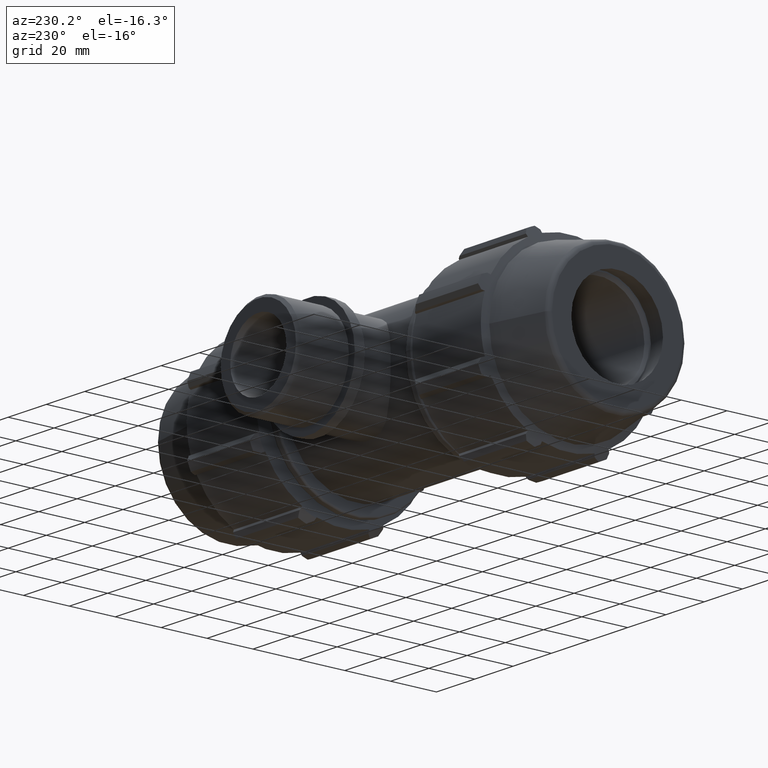
[diagram: clean part render]
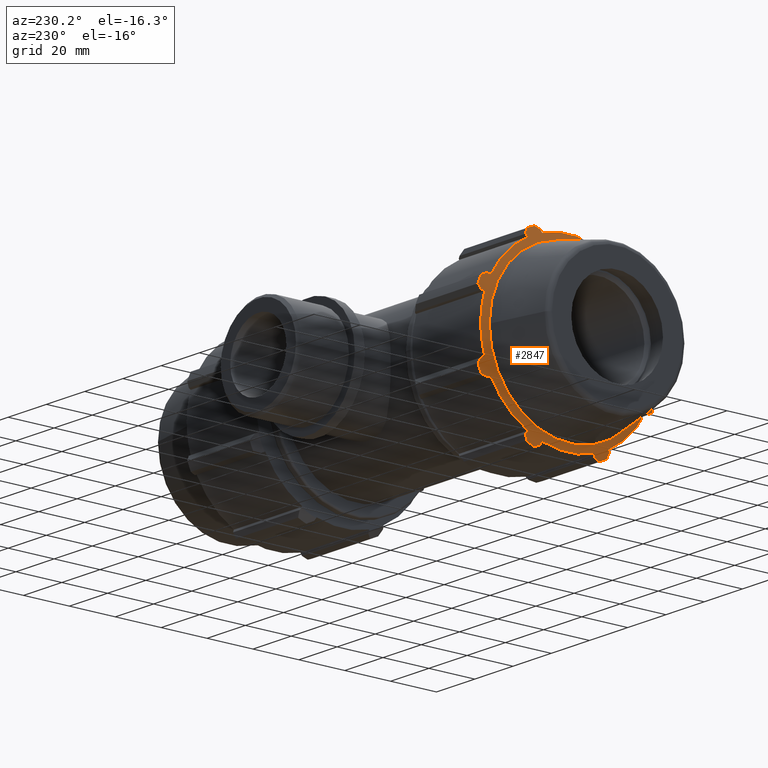
[diagram: same view with one face highlighted and labeled with its STEP entity id]
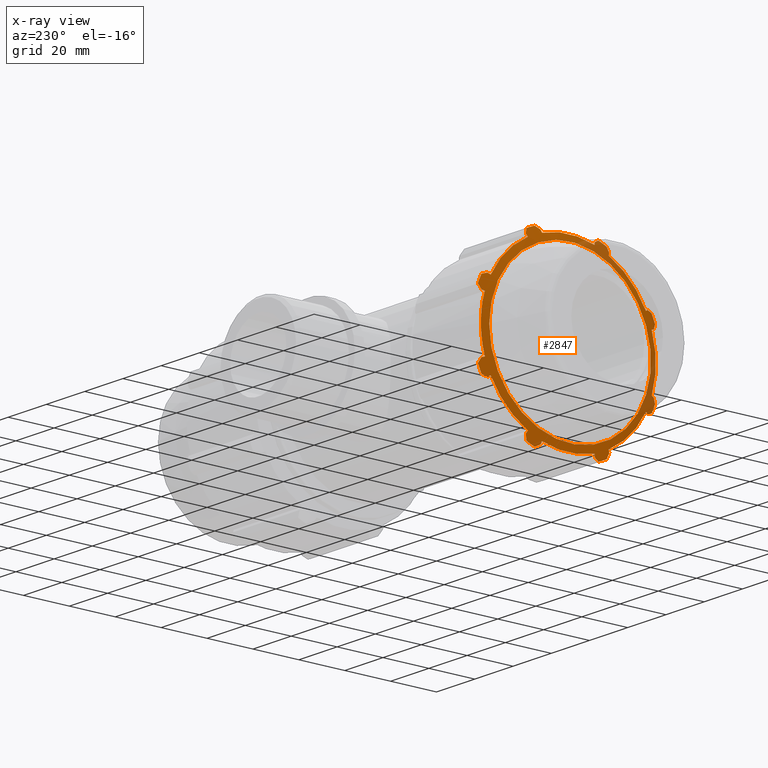
[diagram: x-ray of the same camera — body ghosted, the highlighted face saturated]
A machine part, auxiliary view. The second image highlights one B-rep face of the part: STEP entity #2847.
The next image is the same camera in x-ray: the body ghosted, the highlighted face saturated — about 16% of this face is hidden behind the body in this view.
In plain terms, the highlighted conical surface has half-angle 72 deg.
Its self-contained STEP definition (entity closure, byte-faithful):
#106=(
BOUNDED_CURVE()
B_SPLINE_CURVE(2,(#4237,#4238,#4239),.UNSPECIFIED.,.F.,.F.)
B_SPLINE_CURVE_WITH_KNOTS((3,3),(0.,0.22184272144122),.UNSPECIFIED.)
CURVE()
GEOMETRIC_REPRESENTATION_ITEM()
RATIONAL_B_SPLINE_CURVE((1.,1.00162169945644,1.00242705247196))
REPRESENTATION_ITEM('')
);
#109=(
BOUNDED_CURVE()
B_SPLINE_CURVE(2,(#4263,#4264,#4265),.UNSPECIFIED.,.F.,.F.)
B_SPLINE_CURVE_WITH_KNOTS((3,3),(0.,0.221842721441181),.UNSPECIFIED.)
CURVE()
GEOMETRIC_REPRESENTATION_ITEM()
RATIONAL_B_SPLINE_CURVE((1.,1.0016216994565,1.00242705247205))
REPRESENTATION_ITEM('')
);
#112=(
BOUNDED_CURVE()
B_SPLINE_CURVE(2,(#4289,#4290,#4291),.UNSPECIFIED.,.F.,.F.)
B_SPLINE_CURVE_WITH_KNOTS((3,3),(0.,0.221842721441264),.UNSPECIFIED.)
CURVE()
GEOMETRIC_REPRESENTATION_ITEM()
RATIONAL_B_SPLINE_CURVE((1.,1.00162169945637,1.00242705247186))
REPRESENTATION_ITEM('')
);
#115=(
BOUNDED_CURVE()
B_SPLINE_CURVE(2,(#4315,#4316,#4317),.UNSPECIFIED.,.F.,.F.)
B_SPLINE_CURVE_WITH_KNOTS((3,3),(0.,0.22184272144125),.UNSPECIFIED.)
CURVE()
GEOMETRIC_REPRESENTATION_ITEM()
RATIONAL_B_SPLINE_CURVE((1.,1.00162169945639,1.00242705247189))
REPRESENTATION_ITEM('')
);
#118=(
BOUNDED_CURVE()
B_SPLINE_CURVE(2,(#4341,#4342,#4343),.UNSPECIFIED.,.F.,.F.)
B_SPLINE_CURVE_WITH_KNOTS((3,3),(0.,0.221842721441231),.UNSPECIFIED.)
CURVE()
GEOMETRIC_REPRESENTATION_ITEM()
RATIONAL_B_SPLINE_CURVE((1.,1.00162169945646,1.002427052472))
REPRESENTATION_ITEM('')
);
#121=(
BOUNDED_CURVE()
B_SPLINE_CURVE(2,(#4367,#4368,#4369),.UNSPECIFIED.,.F.,.F.)
B_SPLINE_CURVE_WITH_KNOTS((3,3),(0.,0.221842721441209),.UNSPECIFIED.)
CURVE()
GEOMETRIC_REPRESENTATION_ITEM()
RATIONAL_B_SPLINE_CURVE((1.,1.00162169945662,1.00242705247223))
REPRESENTATION_ITEM('')
);
#124=(
BOUNDED_CURVE()
B_SPLINE_CURVE(2,(#4388,#4389,#4390),.UNSPECIFIED.,.F.,.F.)
B_SPLINE_CURVE_WITH_KNOTS((3,3),(0.,0.221842721441152),.UNSPECIFIED.)
CURVE()
GEOMETRIC_REPRESENTATION_ITEM()
RATIONAL_B_SPLINE_CURVE((1.,1.00162169945648,1.00242705247202))
REPRESENTATION_ITEM('')
);
#125=(
BOUNDED_CURVE()
B_SPLINE_CURVE(2,(#4399,#4400,#4401),.UNSPECIFIED.,.F.,.F.)
B_SPLINE_CURVE_WITH_KNOTS((3,3),(0.659553222107215,0.88139594354837),
 .UNSPECIFIED.)
CURVE()
GEOMETRIC_REPRESENTATION_ITEM()
RATIONAL_B_SPLINE_CURVE((1.00242705247196,1.00162169945644,1.))
REPRESENTATION_ITEM('')
);
#128=(
BOUNDED_CURVE()
B_SPLINE_CURVE(2,(#4425,#4426,#4427),.UNSPECIFIED.,.F.,.F.)
B_SPLINE_CURVE_WITH_KNOTS((3,3),(0.,0.22184272144115),.UNSPECIFIED.)
CURVE()
GEOMETRIC_REPRESENTATION_ITEM()
RATIONAL_B_SPLINE_CURVE((1.,1.00162169945656,1.00242705247214))
REPRESENTATION_ITEM('')
);
#129=(
BOUNDED_CURVE()
B_SPLINE_CURVE(2,(#4443,#4444,#4445),.UNSPECIFIED.,.F.,.F.)
B_SPLINE_CURVE_WITH_KNOTS((3,3),(0.659553222107222,0.881395943548459),
 .UNSPECIFIED.)
CURVE()
GEOMETRIC_REPRESENTATION_ITEM()
RATIONAL_B_SPLINE_CURVE((1.00242705247204,1.00162169945649,1.))
REPRESENTATION_ITEM('')
);
#130=(
BOUNDED_CURVE()
B_SPLINE_CURVE(2,(#4452,#4453,#4454),.UNSPECIFIED.,.F.,.F.)
B_SPLINE_CURVE_WITH_KNOTS((3,3),(0.659553222107211,0.881395943548431),
 .UNSPECIFIED.)
CURVE()
GEOMETRIC_REPRESENTATION_ITEM()
RATIONAL_B_SPLINE_CURVE((1.00242705247207,1.00162169945651,1.))
REPRESENTATION_ITEM('')
);
#131=(
BOUNDED_CURVE()
B_SPLINE_CURVE(2,(#4461,#4462,#4463),.UNSPECIFIED.,.F.,.F.)
B_SPLINE_CURVE_WITH_KNOTS((3,3),(0.659553222107224,0.881395943548425),
 .UNSPECIFIED.)
CURVE()
GEOMETRIC_REPRESENTATION_ITEM()
RATIONAL_B_SPLINE_CURVE((1.00242705247213,1.00162169945655,1.))
REPRESENTATION_ITEM('')
);
#132=(
BOUNDED_CURVE()
B_SPLINE_CURVE(2,(#4470,#4471,#4472),.UNSPECIFIED.,.F.,.F.)
B_SPLINE_CURVE_WITH_KNOTS((3,3),(0.659553222107263,0.881395943548421),
 .UNSPECIFIED.)
CURVE()
GEOMETRIC_REPRESENTATION_ITEM()
RATIONAL_B_SPLINE_CURVE((1.00242705247216,1.00162169945657,1.))
REPRESENTATION_ITEM('')
);
#133=(
BOUNDED_CURVE()
B_SPLINE_CURVE(2,(#4479,#4480,#4481),.UNSPECIFIED.,.F.,.F.)
B_SPLINE_CURVE_WITH_KNOTS((3,3),(0.659553222107144,0.881395943548422),
 .UNSPECIFIED.)
CURVE()
GEOMETRIC_REPRESENTATION_ITEM()
RATIONAL_B_SPLINE_CURVE((1.00242705247189,1.00162169945639,1.))
REPRESENTATION_ITEM('')
);
#134=(
BOUNDED_CURVE()
B_SPLINE_CURVE(2,(#4488,#4489,#4490),.UNSPECIFIED.,.F.,.F.)
B_SPLINE_CURVE_WITH_KNOTS((3,3),(0.659553222107197,0.881395943548414),
 .UNSPECIFIED.)
CURVE()
GEOMETRIC_REPRESENTATION_ITEM()
RATIONAL_B_SPLINE_CURVE((1.00242705247199,1.00162169945646,1.))
REPRESENTATION_ITEM('')
);
#135=(
BOUNDED_CURVE()
B_SPLINE_CURVE(2,(#4497,#4498,#4499),.UNSPECIFIED.,.F.,.F.)
B_SPLINE_CURVE_WITH_KNOTS((3,3),(0.659553222107159,0.881395943548393),
 .UNSPECIFIED.)
CURVE()
GEOMETRIC_REPRESENTATION_ITEM()
RATIONAL_B_SPLINE_CURVE((1.00242705247191,1.0016216994564,1.))
REPRESENTATION_ITEM('')
);
#192=CIRCLE('',#3029,41.);
#198=CIRCLE('',#3043,41.);
#199=CIRCLE('',#3044,38.13);
#200=CIRCLE('',#3045,41.);
#201=CIRCLE('',#3046,38.13);
#202=CIRCLE('',#3047,41.);
#203=CIRCLE('',#3048,38.13);
#204=CIRCLE('',#3049,41.);
#205=CIRCLE('',#3050,38.13);
#206=CIRCLE('',#3051,41.);
#207=CIRCLE('',#3052,38.13);
#208=CIRCLE('',#3053,41.);
#209=CIRCLE('',#3054,38.13);
#210=CIRCLE('',#3055,41.);
#211=CIRCLE('',#3056,38.13);
#212=CIRCLE('',#3057,38.13);
#213=CIRCLE('',#3058,35.2288914170826);
#312=LINE('',#4232,#510);
#318=LINE('',#4258,#516);
#324=LINE('',#4284,#522);
#330=LINE('',#4310,#528);
#336=LINE('',#4336,#534);
#342=LINE('',#4362,#540);
#354=LINE('',#4420,#552);
#357=LINE('',#4447,#555);
#358=LINE('',#4456,#556);
#359=LINE('',#4465,#557);
#360=LINE('',#4474,#558);
#361=LINE('',#4483,#559);
#362=LINE('',#4492,#560);
#363=LINE('',#4501,#561);
#364=LINE('',#4504,#562);
#365=LINE('',#4506,#563);
#510=VECTOR('',#3334,1.29329853581307);
#516=VECTOR('',#3348,1.29329853581307);
#522=VECTOR('',#3362,1.29329853581307);
#528=VECTOR('',#3376,1.29329853581307);
#534=VECTOR('',#3390,1.29329853581307);
#540=VECTOR('',#3404,1.29329853581305);
#552=VECTOR('',#3436,1.29329853581305);
#555=VECTOR('',#3459,1.29329853581305);
#556=VECTOR('',#3464,1.29329853581306);
#557=VECTOR('',#3469,1.29329853581307);
#558=VECTOR('',#3474,1.29329853581307);
#559=VECTOR('',#3479,1.29329853581307);
#560=VECTOR('',#3484,1.29329853581306);
#561=VECTOR('',#3489,1.29329853581305);
#562=VECTOR('',#3492,1.29329853581306);
#563=VECTOR('',#3493,1.29329853581305);
#698=CONICAL_SURFACE('',#3042,38.1144457085413,72.);
#719=FACE_BOUND('',#958,.T.);
#790=FACE_OUTER_BOUND('',#957,.T.);
#957=EDGE_LOOP('',(#1977,#1978,#1979,#1980,#1981,#1982,#1983,#1984,#1985,
#1986,#1987,#1988,#1989,#1990,#1991,#1992,#1993,#1994,#1995,#1996,#1997,
#1998,#1999,#2000,#2001,#2002,#2003,#2004,#2005,#2006,#2007,#2008,#2009,
#2010,#2011,#2012,#2013,#2014,#2015,#2016,#2017,#2018,#2019,#2020,#2021,
#2022,#2023,#2024));
#958=EDGE_LOOP('',(#2025));
#1178=VERTEX_POINT('',#4229);
#1179=VERTEX_POINT('',#4231);
#1180=VERTEX_POINT('',#4235);
#1185=VERTEX_POINT('',#4255);
#1186=VERTEX_POINT('',#4257);
#1187=VERTEX_POINT('',#4261);
#1192=VERTEX_POINT('',#4281);
#1193=VERTEX_POINT('',#4283);
#1194=VERTEX_POINT('',#4287);
#1199=VERTEX_POINT('',#4307);
#1200=VERTEX_POINT('',#4309);
#1201=VERTEX_POINT('',#4313);
#1206=VERTEX_POINT('',#4333);
#1207=VERTEX_POINT('',#4335);
#1208=VERTEX_POINT('',#4339);
#1213=VERTEX_POINT('',#4359);
#1214=VERTEX_POINT('',#4361);
#1215=VERTEX_POINT('',#4365);
#1220=VERTEX_POINT('',#4385);
#1221=VERTEX_POINT('',#4387);
#1222=VERTEX_POINT('',#4393);
#1223=VERTEX_POINT('',#4397);
#1228=VERTEX_POINT('',#4417);
#1229=VERTEX_POINT('',#4419);
#1230=VERTEX_POINT('',#4423);
#1235=VERTEX_POINT('',#4440);
#1236=VERTEX_POINT('',#4442);
#1237=VERTEX_POINT('',#4446);
#1238=VERTEX_POINT('',#4449);
#1239=VERTEX_POINT('',#4451);
#1240=VERTEX_POINT('',#4455);
#1241=VERTEX_POINT('',#4458);
#1242=VERTEX_POINT('',#4460);
#1243=VERTEX_POINT('',#4464);
#1244=VERTEX_POINT('',#4467);
#1245=VERTEX_POINT('',#4469);
#1246=VERTEX_POINT('',#4473);
#1247=VERTEX_POINT('',#4476);
#1248=VERTEX_POINT('',#4478);
#1249=VERTEX_POINT('',#4482);
#1250=VERTEX_POINT('',#4485);
#1251=VERTEX_POINT('',#4487);
#1252=VERTEX_POINT('',#4491);
#1253=VERTEX_POINT('',#4494);
#1254=VERTEX_POINT('',#4496);
#1255=VERTEX_POINT('',#4500);
#1256=VERTEX_POINT('',#4502);
#1257=VERTEX_POINT('',#4505);
#1258=VERTEX_POINT('',#4508);
#1458=EDGE_CURVE('',#1179,#1178,#312,.T.);
#1461=EDGE_CURVE('',#1180,#1178,#106,.T.);
#1468=EDGE_CURVE('',#1186,#1185,#318,.T.);
#1471=EDGE_CURVE('',#1187,#1185,#109,.T.);
#1478=EDGE_CURVE('',#1193,#1192,#324,.T.);
#1481=EDGE_CURVE('',#1194,#1192,#112,.T.);
#1488=EDGE_CURVE('',#1200,#1199,#330,.T.);
#1491=EDGE_CURVE('',#1201,#1199,#115,.T.);
#1498=EDGE_CURVE('',#1207,#1206,#336,.T.);
#1501=EDGE_CURVE('',#1208,#1206,#118,.T.);
#1508=EDGE_CURVE('',#1214,#1213,#342,.T.);
#1511=EDGE_CURVE('',#1215,#1213,#121,.T.);
#1518=EDGE_CURVE('',#1220,#1221,#124,.T.);
#1521=EDGE_CURVE('',#1222,#1220,#192,.T.);
#1523=EDGE_CURVE('',#1223,#1222,#125,.T.);
#1530=EDGE_CURVE('',#1229,#1228,#354,.T.);
#1533=EDGE_CURVE('',#1230,#1228,#128,.T.);
#1538=EDGE_CURVE('',#1235,#1215,#198,.T.);
#1539=EDGE_CURVE('',#1236,#1235,#129,.T.);
#1540=EDGE_CURVE('',#1236,#1237,#357,.T.);
#1541=EDGE_CURVE('',#1237,#1207,#199,.T.);
#1542=EDGE_CURVE('',#1238,#1208,#200,.T.);
#1543=EDGE_CURVE('',#1239,#1238,#130,.T.);
#1544=EDGE_CURVE('',#1239,#1240,#358,.T.);
#1545=EDGE_CURVE('',#1240,#1200,#201,.T.);
#1546=EDGE_CURVE('',#1241,#1201,#202,.T.);
#1547=EDGE_CURVE('',#1242,#1241,#131,.T.);
#1548=EDGE_CURVE('',#1242,#1243,#359,.T.);
#1549=EDGE_CURVE('',#1243,#1193,#203,.T.);
#1550=EDGE_CURVE('',#1244,#1194,#204,.T.);
#1551=EDGE_CURVE('',#1245,#1244,#132,.T.);
#1552=EDGE_CURVE('',#1245,#1246,#360,.T.);
#1553=EDGE_CURVE('',#1246,#1186,#205,.T.);
#1554=EDGE_CURVE('',#1247,#1187,#206,.T.);
#1555=EDGE_CURVE('',#1248,#1247,#133,.T.);
#1556=EDGE_CURVE('',#1248,#1249,#361,.T.);
#1557=EDGE_CURVE('',#1249,#1179,#207,.T.);
#1558=EDGE_CURVE('',#1250,#1180,#208,.T.);
#1559=EDGE_CURVE('',#1251,#1250,#134,.T.);
#1560=EDGE_CURVE('',#1251,#1252,#362,.T.);
#1561=EDGE_CURVE('',#1252,#1229,#209,.T.);
#1562=EDGE_CURVE('',#1253,#1230,#210,.T.);
#1563=EDGE_CURVE('',#1254,#1253,#135,.T.);
#1564=EDGE_CURVE('',#1254,#1255,#363,.T.);
#1565=EDGE_CURVE('',#1255,#1256,#211,.T.);
#1566=EDGE_CURVE('',#1256,#1221,#364,.T.);
#1567=EDGE_CURVE('',#1223,#1257,#365,.T.);
#1568=EDGE_CURVE('',#1257,#1214,#212,.T.);
#1569=EDGE_CURVE('',#1258,#1258,#213,.T.);
#1977=ORIENTED_EDGE('',*,*,#1511,.F.);
#1978=ORIENTED_EDGE('',*,*,#1538,.F.);
#1979=ORIENTED_EDGE('',*,*,#1539,.F.);
#1980=ORIENTED_EDGE('',*,*,#1540,.T.);
#1981=ORIENTED_EDGE('',*,*,#1541,.T.);
#1982=ORIENTED_EDGE('',*,*,#1498,.T.);
#1983=ORIENTED_EDGE('',*,*,#1501,.F.);
#1984=ORIENTED_EDGE('',*,*,#1542,.F.);
#1985=ORIENTED_EDGE('',*,*,#1543,.F.);
#1986=ORIENTED_EDGE('',*,*,#1544,.T.);
#1987=ORIENTED_EDGE('',*,*,#1545,.T.);
#1988=ORIENTED_EDGE('',*,*,#1488,.T.);
#1989=ORIENTED_EDGE('',*,*,#1491,.F.);
#1990=ORIENTED_EDGE('',*,*,#1546,.F.);
#1991=ORIENTED_EDGE('',*,*,#1547,.F.);
#1992=ORIENTED_EDGE('',*,*,#1548,.T.);
#1993=ORIENTED_EDGE('',*,*,#1549,.T.);
#1994=ORIENTED_EDGE('',*,*,#1478,.T.);
#1995=ORIENTED_EDGE('',*,*,#1481,.F.);
#1996=ORIENTED_EDGE('',*,*,#1550,.F.);
#1997=ORIENTED_EDGE('',*,*,#1551,.F.);
#1998=ORIENTED_EDGE('',*,*,#1552,.T.);
#1999=ORIENTED_EDGE('',*,*,#1553,.T.);
#2000=ORIENTED_EDGE('',*,*,#1468,.T.);
#2001=ORIENTED_EDGE('',*,*,#1471,.F.);
#2002=ORIENTED_EDGE('',*,*,#1554,.F.);
#2003=ORIENTED_EDGE('',*,*,#1555,.F.);
#2004=ORIENTED_EDGE('',*,*,#1556,.T.);
#2005=ORIENTED_EDGE('',*,*,#1557,.T.);
#2006=ORIENTED_EDGE('',*,*,#1458,.T.);
#2007=ORIENTED_EDGE('',*,*,#1461,.F.);
#2008=ORIENTED_EDGE('',*,*,#1558,.F.);
#2009=ORIENTED_EDGE('',*,*,#1559,.F.);
#2010=ORIENTED_EDGE('',*,*,#1560,.T.);
#2011=ORIENTED_EDGE('',*,*,#1561,.T.);
#2012=ORIENTED_EDGE('',*,*,#1530,.T.);
#2013=ORIENTED_EDGE('',*,*,#1533,.F.);
#2014=ORIENTED_EDGE('',*,*,#1562,.F.);
#2015=ORIENTED_EDGE('',*,*,#1563,.F.);
#2016=ORIENTED_EDGE('',*,*,#1564,.T.);
#2017=ORIENTED_EDGE('',*,*,#1565,.T.);
#2018=ORIENTED_EDGE('',*,*,#1566,.T.);
#2019=ORIENTED_EDGE('',*,*,#1518,.F.);
#2020=ORIENTED_EDGE('',*,*,#1521,.F.);
#2021=ORIENTED_EDGE('',*,*,#1523,.F.);
#2022=ORIENTED_EDGE('',*,*,#1567,.T.);
#2023=ORIENTED_EDGE('',*,*,#1568,.T.);
#2024=ORIENTED_EDGE('',*,*,#1508,.T.);
#2025=ORIENTED_EDGE('',*,*,#1569,.T.);
#2847=ADVANCED_FACE('',(#790,#719),#698,.T.);
#3029=AXIS2_PLACEMENT_3D('',#4395,#3422,#3423);
#3042=AXIS2_PLACEMENT_3D('',#4439,#3455,#3456);
#3043=AXIS2_PLACEMENT_3D('',#4441,#3457,#3458);
#3044=AXIS2_PLACEMENT_3D('',#4448,#3460,#3461);
#3045=AXIS2_PLACEMENT_3D('',#4450,#3462,#3463);
#3046=AXIS2_PLACEMENT_3D('',#4457,#3465,#3466);
#3047=AXIS2_PLACEMENT_3D('',#4459,#3467,#3468);
#3048=AXIS2_PLACEMENT_3D('',#4466,#3470,#3471);
#3049=AXIS2_PLACEMENT_3D('',#4468,#3472,#3473);
#3050=AXIS2_PLACEMENT_3D('',#4475,#3475,#3476);
#3051=AXIS2_PLACEMENT_3D('',#4477,#3477,#3478);
#3052=AXIS2_PLACEMENT_3D('',#4484,#3480,#3481);
#3053=AXIS2_PLACEMENT_3D('',#4486,#3482,#3483);
#3054=AXIS2_PLACEMENT_3D('',#4493,#3485,#3486);
#3055=AXIS2_PLACEMENT_3D('',#4495,#3487,#3488);
#3056=AXIS2_PLACEMENT_3D('',#4503,#3490,#3491);
#3057=AXIS2_PLACEMENT_3D('',#4507,#3494,#3495);
#3058=AXIS2_PLACEMENT_3D('',#4509,#3496,#3497);
#3334=DIRECTION('',(0.309016994374947,-0.43914902750743,0.843597432918541));
#3348=DIRECTION('',(0.309016994374947,-0.907038720710245,0.285988210106283));
#3362=DIRECTION('',(0.309016994374947,-0.843597432918541,-0.43914902750743));
#3376=DIRECTION('',(0.309016994374947,-0.285988210106283,-0.907038720710245));
#3390=DIRECTION('',(0.309016994374947,0.439149027507429,-0.843597432918541));
#3404=DIRECTION('',(0.309016994374948,0.907038720710245,-0.285988210106283));
#3422=DIRECTION('center_axis',(1.,-5.30313939382931E-16,0.));
#3423=DIRECTION('ref_axis',(0.,0.,-1.));
#3436=DIRECTION('',(0.309016994374947,0.285988210106282,0.907038720710245));
#3455=DIRECTION('center_axis',(1.,-5.30313939382931E-16,0.));
#3456=DIRECTION('ref_axis',(8.54486543630854E-16,1.,0.));
#3457=DIRECTION('center_axis',(1.,-5.30313939382931E-16,0.));
#3458=DIRECTION('ref_axis',(0.,0.,-1.));
#3459=DIRECTION('',(-0.309016994374948,-0.843597432918541,0.43914902750743));
#3460=DIRECTION('center_axis',(-1.,6.19554375051006E-16,2.34932168579848E-16));
#3461=DIRECTION('ref_axis',(-4.41071839367161E-16,-0.887010833178222,0.461748613235034));
#3462=DIRECTION('center_axis',(1.,-5.30313939382931E-16,0.));
#3463=DIRECTION('ref_axis',(0.,0.,-1.));
#3464=DIRECTION('',(-0.309016994374947,-0.285988210106282,0.907038720710245));
#3465=DIRECTION('center_axis',(-1.,8.54486543630854E-16,3.32244259043343E-16));
#3466=DIRECTION('ref_axis',(5.99179223702629E-17,-0.300705799504273,0.953716950748227));
#3467=DIRECTION('center_axis',(1.,-5.30313939382931E-16,0.));
#3468=DIRECTION('ref_axis',(0.,0.,-1.));
#3469=DIRECTION('',(-0.309016994374947,0.43914902750743,0.843597432918541));
#3470=DIRECTION('center_axis',(-1.,1.0894187122107E-15,2.34932168579848E-16));
#3471=DIRECTION('ref_axis',(7.11424958187966E-16,0.461748613235034,0.887010833178222));
#3472=DIRECTION('center_axis',(1.,-5.30313939382931E-16,0.));
#3473=DIRECTION('ref_axis',(0.,0.,-1.));
#3474=DIRECTION('',(-0.309016994374947,0.907038720710245,0.285988210106283));
#3475=DIRECTION('center_axis',(-1.,1.1867308026742E-15,-1.23259516440783E-31));
#3476=DIRECTION('ref_axis',(1.13180528248543E-15,0.953716950748227,0.300705799504273));
#3477=DIRECTION('center_axis',(1.,-5.30313939382931E-16,0.));
#3478=DIRECTION('ref_axis',(0.,0.,-1.));
#3479=DIRECTION('',(-0.309016994374947,0.843597432918541,-0.43914902750743));
#3480=DIRECTION('center_axis',(-1.,1.0894187122107E-15,-2.34932168579848E-16));
#3481=DIRECTION('ref_axis',(1.074805802644E-15,0.887010833178222,-0.461748613235034));
#3482=DIRECTION('center_axis',(1.,-5.30313939382931E-16,0.));
#3483=DIRECTION('ref_axis',(0.,0.,-1.));
#3484=DIRECTION('',(-0.309016994374947,0.285988210106283,-0.907038720710245));
#3485=DIRECTION('center_axis',(-1.,8.54486543630854E-16,-3.32244259043343E-16));
#3486=DIRECTION('ref_axis',(5.73816040906581E-16,0.300705799504273,-0.953716950748227));
#3487=DIRECTION('center_axis',(1.,-5.30313939382931E-16,0.));
#3488=DIRECTION('ref_axis',(0.,0.,-1.));
#3489=DIRECTION('',(-0.309016994374947,-0.43914902750743,-0.843597432918541));
#3490=DIRECTION('center_axis',(-1.,6.19554375051006E-16,-2.34932168579848E-16));
#3491=DIRECTION('ref_axis',(-7.76909949111225E-17,-0.461748613235034,-0.887010833178222));
#3492=DIRECTION('',(0.309016994374948,0.843597432918541,0.43914902750743));
#3493=DIRECTION('',(-0.309016994374948,-0.907038720710245,-0.285988210106283));
#3494=DIRECTION('center_axis',(-1.,5.2224228458751E-16,0.));
#3495=DIRECTION('ref_axis',(-4.98071319208588E-16,-0.953716950748227,-0.300705799504273));
#3496=DIRECTION('center_axis',(1.,-5.30313939382931E-16,0.));
#3497=DIRECTION('ref_axis',(0.,0.,-1.));
#4229=CARTESIAN_POINT('',(-76.5577214541333,-18.1744254169309,34.9127463938948));
#4231=CARTESIAN_POINT('',(-76.9573726804998,-17.6064746226518,33.8217230690856));
#4232=CARTESIAN_POINT('',(-76.9624265761557,-17.5992924501409,33.8079262440593));
#4235=CARTESIAN_POINT('',(-76.0248531523114,-17.462140990363,37.0954664619908));
#4237=CARTESIAN_POINT('Ctrl Pts',(-76.0248531523112,-17.4621409903628,37.0954664619914));
#4238=CARTESIAN_POINT('Ctrl Pts',(-76.3019446692587,-17.8255514120812,35.9818337741871));
#4239=CARTESIAN_POINT('Ctrl Pts',(-76.5577214541333,-18.1744254169309,34.9127463938948));
#4255=CARTESIAN_POINT('',(-76.5577214541334,-37.5382991814502,11.8357802684882));
#4257=CARTESIAN_POINT('',(-76.9573726804998,-36.3652273320298,11.4659121350979));
#4258=CARTESIAN_POINT('',(-76.9624265761557,-36.3503929406088,11.4612348694491));
#4261=CARTESIAN_POINT('',(-76.0248531523114,-38.578054194873,13.8828575782305));
#4263=CARTESIAN_POINT('Ctrl Pts',(-76.0248531523112,-38.5780541948734,13.8828575782312));
#4264=CARTESIAN_POINT('Ctrl Pts',(-76.3019446692587,-38.0475669431268,12.8384303793827));
#4265=CARTESIAN_POINT('Ctrl Pts',(-76.5577214541334,-37.5382991814502,11.8357802684882));
#4281=CARTESIAN_POINT('',(-76.5577214541334,-34.9127463938948,-18.1744254169309));
#4283=CARTESIAN_POINT('',(-76.9573726804998,-33.8217230690856,-17.6064746226518));
#4284=CARTESIAN_POINT('',(-76.9624265761557,-33.8079262440592,-17.5992924501409));
#4287=CARTESIAN_POINT('',(-76.0248531523114,-37.0954664619907,-17.462140990363));
#4289=CARTESIAN_POINT('Ctrl Pts',(-76.0248531523112,-37.0954664619915,-17.4621409903628));
#4290=CARTESIAN_POINT('Ctrl Pts',(-76.3019446692587,-35.9818337741872,-17.8255514120812));
#4291=CARTESIAN_POINT('Ctrl Pts',(-76.5577214541334,-34.9127463938948,-18.1744254169309));
#4307=CARTESIAN_POINT('',(-76.5577214541333,-11.8357802684881,-37.5382991814502));
#4309=CARTESIAN_POINT('',(-76.9573726804998,-11.4659121350979,-36.3652273320299));
#4310=CARTESIAN_POINT('',(-76.9624265761557,-11.4612348694491,-36.3503929406088));
#4313=CARTESIAN_POINT('',(-76.0248531523114,-13.8828575782305,-38.5780541948731));
#4315=CARTESIAN_POINT('Ctrl Pts',(-76.0248531523112,-13.8828575782312,-38.5780541948735));
#4316=CARTESIAN_POINT('Ctrl Pts',(-76.3019446692587,-12.8384303793828,-38.047566943127));
#4317=CARTESIAN_POINT('Ctrl Pts',(-76.5577214541333,-11.8357802684881,-37.5382991814502));
#4333=CARTESIAN_POINT('',(-76.5577214541333,18.174425416931,-34.9127463938948));
#4335=CARTESIAN_POINT('',(-76.9573726804998,17.6064746226519,-33.8217230690856));
#4336=CARTESIAN_POINT('',(-76.9624265761557,17.599292450141,-33.8079262440593));
#4339=CARTESIAN_POINT('',(-76.0248531523114,17.4621409903631,-37.0954664619908));
#4341=CARTESIAN_POINT('Ctrl Pts',(-76.0248531523111,17.4621409903628,-37.0954664619917));
#4342=CARTESIAN_POINT('Ctrl Pts',(-76.3019446692587,17.8255514120812,-35.9818337741872));
#4343=CARTESIAN_POINT('Ctrl Pts',(-76.5577214541333,18.174425416931,-34.9127463938948));
#4359=CARTESIAN_POINT('',(-76.5577214541333,37.5382991814502,-11.8357802684882));
#4361=CARTESIAN_POINT('',(-76.9573726804998,36.3652273320299,-11.4659121350979));
#4362=CARTESIAN_POINT('',(-76.9624265761557,36.3503929406089,-11.4612348694491));
#4365=CARTESIAN_POINT('',(-76.0248531523113,38.5780541948731,-13.8828575782305));
#4367=CARTESIAN_POINT('Ctrl Pts',(-76.024853152311,38.5780541948737,-13.8828575782316));
#4368=CARTESIAN_POINT('Ctrl Pts',(-76.3019446692587,38.0475669431269,-12.8384303793827));
#4369=CARTESIAN_POINT('Ctrl Pts',(-76.5577214541333,37.5382991814502,-11.8357802684882));
#4385=CARTESIAN_POINT('',(-76.0248531523113,37.0954664619908,17.462140990363));
#4387=CARTESIAN_POINT('',(-76.5577214541333,34.9127463938948,18.1744254169309));
#4388=CARTESIAN_POINT('Ctrl Pts',(-76.0248531523113,37.0954664619909,17.462140990363));
#4389=CARTESIAN_POINT('Ctrl Pts',(-76.3019446692587,35.9818337741868,17.8255514120813));
#4390=CARTESIAN_POINT('Ctrl Pts',(-76.5577214541333,34.9127463938948,18.1744254169309));
#4393=CARTESIAN_POINT('',(-76.0248531523113,38.5780541948731,13.8828575782305));
#4395=CARTESIAN_POINT('Origin',(-76.0248531523114,4.0317039366211E-14,0.));
#4397=CARTESIAN_POINT('',(-76.5577214541333,37.5382991814502,11.8357802684882));
#4399=CARTESIAN_POINT('Ctrl Pts',(-76.5577214541333,37.5382991814502,11.8357802684882));
#4400=CARTESIAN_POINT('Ctrl Pts',(-76.3019446692587,38.0475669431268,12.8384303793825));
#4401=CARTESIAN_POINT('Ctrl Pts',(-76.0248531523113,38.5780541948733,13.8828575782308));
#4417=CARTESIAN_POINT('',(-76.5577214541333,11.8357802684882,37.5382991814502));
#4419=CARTESIAN_POINT('',(-76.9573726804998,11.465912135098,36.3652273320299));
#4420=CARTESIAN_POINT('',(-76.9624265761557,11.4612348694492,36.3503929406088));
#4423=CARTESIAN_POINT('',(-76.0248531523114,13.8828575782306,38.5780541948731));
#4425=CARTESIAN_POINT('Ctrl Pts',(-76.0248531523112,13.8828575782311,38.5780541948733));
#4426=CARTESIAN_POINT('Ctrl Pts',(-76.3019446692587,12.8384303793825,38.0475669431268));
#4427=CARTESIAN_POINT('Ctrl Pts',(-76.5577214541333,11.8357802684882,37.5382991814502));
#4439=CARTESIAN_POINT('Origin',(-76.9624265761557,4.08142476220707E-14,
0.));
#4440=CARTESIAN_POINT('',(-76.0248531523113,37.0954664619908,-17.4621409903631));
#4441=CARTESIAN_POINT('Origin',(-76.0248531523114,4.0317039366211E-14,0.));
#4442=CARTESIAN_POINT('',(-76.5577214541333,34.9127463938948,-18.1744254169309));
#4443=CARTESIAN_POINT('Ctrl Pts',(-76.5577214541333,34.9127463938948,-18.1744254169309));
#4444=CARTESIAN_POINT('Ctrl Pts',(-76.3019446692587,35.9818337741872,-17.8255514120812));
#4445=CARTESIAN_POINT('Ctrl Pts',(-76.0248531523111,37.0954664619918,-17.4621409903627));
#4446=CARTESIAN_POINT('',(-76.9573726804998,33.8217230690856,-17.6064746226519));
#4447=CARTESIAN_POINT('',(-76.9624265761557,33.8079262440593,-17.5992924501409));
#4448=CARTESIAN_POINT('Origin',(-76.9573726804998,4.23576499398055E-14,
4.43326374480848E-15));
#4449=CARTESIAN_POINT('',(-76.0248531523114,13.8828575782305,-38.5780541948731));
#4450=CARTESIAN_POINT('Origin',(-76.0248531523114,4.0317039366211E-14,0.));
#4451=CARTESIAN_POINT('',(-76.5577214541333,11.8357802684882,-37.5382991814502));
#4452=CARTESIAN_POINT('Ctrl Pts',(-76.5577214541333,11.8357802684882,-37.5382991814502));
#4453=CARTESIAN_POINT('Ctrl Pts',(-76.3019446692587,12.8384303793828,-38.0475669431269));
#4454=CARTESIAN_POINT('Ctrl Pts',(-76.0248531523112,13.8828575782313,-38.5780541948735));
#4455=CARTESIAN_POINT('',(-76.9573726804998,11.465912135098,-36.3652273320299));
#4456=CARTESIAN_POINT('',(-76.9624265761557,11.4612348694492,-36.3503929406088));
#4457=CARTESIAN_POINT('Origin',(-76.9573726804998,4.6790913684614E-14,6.26958171348508E-15));
#4458=CARTESIAN_POINT('',(-76.0248531523114,-17.462140990363,-37.0954664619907));
#4459=CARTESIAN_POINT('Origin',(-76.0248531523114,4.0317039366211E-14,0.));
#4460=CARTESIAN_POINT('',(-76.5577214541333,-18.1744254169309,-34.9127463938948));
#4461=CARTESIAN_POINT('Ctrl Pts',(-76.5577214541333,-18.1744254169309,-34.9127463938948));
#4462=CARTESIAN_POINT('Ctrl Pts',(-76.3019446692587,-17.8255514120812,-35.981833774187));
#4463=CARTESIAN_POINT('Ctrl Pts',(-76.0248531523112,-17.4621409903628,-37.0954664619915));
#4464=CARTESIAN_POINT('',(-76.9573726804998,-17.6064746226518,-33.8217230690856));
#4465=CARTESIAN_POINT('',(-76.9624265761557,-17.5992924501409,-33.8079262440593));
#4466=CARTESIAN_POINT('Origin',(-76.9573726804998,5.12241774294225E-14,
4.43326374480848E-15));
#4467=CARTESIAN_POINT('',(-76.0248531523114,-38.578054194873,-13.8828575782305));
#4468=CARTESIAN_POINT('Origin',(-76.0248531523114,4.0317039366211E-14,0.));
#4469=CARTESIAN_POINT('',(-76.5577214541334,-37.5382991814502,-11.8357802684882));
#4470=CARTESIAN_POINT('Ctrl Pts',(-76.5577214541333,-37.5382991814502,-11.8357802684882));
#4471=CARTESIAN_POINT('Ctrl Pts',(-76.3019446692588,-38.0475669431268,-12.8384303793826));
#4472=CARTESIAN_POINT('Ctrl Pts',(-76.0248531523112,-38.5780541948734,-13.8828575782312));
#4473=CARTESIAN_POINT('',(-76.9573726804998,-36.3652273320298,-11.4659121350979));
#4474=CARTESIAN_POINT('',(-76.9624265761557,-36.3503929406088,-11.4612348694491));
#4475=CARTESIAN_POINT('Origin',(-76.9573726804998,5.30604953980991E-14,
-1.0348545158237E-29));
#4476=CARTESIAN_POINT('',(-76.0248531523114,-37.0954664619907,17.462140990363));
#4477=CARTESIAN_POINT('Origin',(-76.0248531523114,4.0317039366211E-14,0.));
#4478=CARTESIAN_POINT('',(-76.5577214541333,-34.9127463938948,18.1744254169309));
#4479=CARTESIAN_POINT('Ctrl Pts',(-76.5577214541333,-34.9127463938948,18.1744254169309));
#4480=CARTESIAN_POINT('Ctrl Pts',(-76.3019446692587,-35.9818337741872,17.8255514120812));
#4481=CARTESIAN_POINT('Ctrl Pts',(-76.0248531523112,-37.0954664619915,17.4621409903628));
#4482=CARTESIAN_POINT('',(-76.9573726804998,-33.8217230690856,17.6064746226518));
#4483=CARTESIAN_POINT('',(-76.9624265761557,-33.8079262440592,17.5992924501409));
#4484=CARTESIAN_POINT('Origin',(-76.9573726804998,5.12241774294224E-14,
-4.43326374480848E-15));
#4485=CARTESIAN_POINT('',(-76.0248531523114,-13.8828575782305,38.5780541948731));
#4486=CARTESIAN_POINT('Origin',(-76.0248531523114,4.0317039366211E-14,0.));
#4487=CARTESIAN_POINT('',(-76.5577214541333,-11.8357802684882,37.5382991814502));
#4488=CARTESIAN_POINT('Ctrl Pts',(-76.5577214541333,-11.8357802684882,37.5382991814502));
#4489=CARTESIAN_POINT('Ctrl Pts',(-76.3019446692587,-12.8384303793827,38.0475669431269));
#4490=CARTESIAN_POINT('Ctrl Pts',(-76.0248531523112,-13.8828575782311,38.5780541948734));
#4491=CARTESIAN_POINT('',(-76.9573726804998,-11.4659121350979,36.3652273320299));
#4492=CARTESIAN_POINT('',(-76.9624265761557,-11.4612348694491,36.3503929406088));
#4493=CARTESIAN_POINT('Origin',(-76.9573726804998,4.6790913684614E-14,-6.26958171348508E-15));
#4494=CARTESIAN_POINT('',(-76.0248531523114,17.4621409903631,37.0954664619908));
#4495=CARTESIAN_POINT('Origin',(-76.0248531523114,4.0317039366211E-14,0.));
#4496=CARTESIAN_POINT('',(-76.5577214541333,18.174425416931,34.9127463938948));
#4497=CARTESIAN_POINT('Ctrl Pts',(-76.5577214541333,18.174425416931,34.9127463938948));
#4498=CARTESIAN_POINT('Ctrl Pts',(-76.3019446692587,17.8255514120813,35.9818337741871));
#4499=CARTESIAN_POINT('Ctrl Pts',(-76.0248531523113,17.462140990363,37.0954664619912));
#4500=CARTESIAN_POINT('',(-76.9573726804998,17.6064746226519,33.8217230690856));
#4501=CARTESIAN_POINT('',(-76.9624265761557,17.599292450141,33.8079262440593));
#4502=CARTESIAN_POINT('',(-76.9573726804998,33.8217230690856,17.6064746226518));
#4503=CARTESIAN_POINT('Origin',(-76.9573726804998,4.23576499398055E-14,
-4.43326374480848E-15));
#4504=CARTESIAN_POINT('',(-76.9624265761557,33.8079262440593,17.5992924501409));
#4505=CARTESIAN_POINT('',(-76.9573726804998,36.3652273320299,11.4659121350979));
#4506=CARTESIAN_POINT('',(-76.9624265761557,36.3503929406089,11.4612348694491));
#4507=CARTESIAN_POINT('Origin',(-76.9573726804998,4.05213319711289E-14,
0.));
#4508=CARTESIAN_POINT('',(-77.9,35.2288914170826,0.));
#4509=CARTESIAN_POINT('Origin',(-77.9,4.13114558779303E-14,0.));